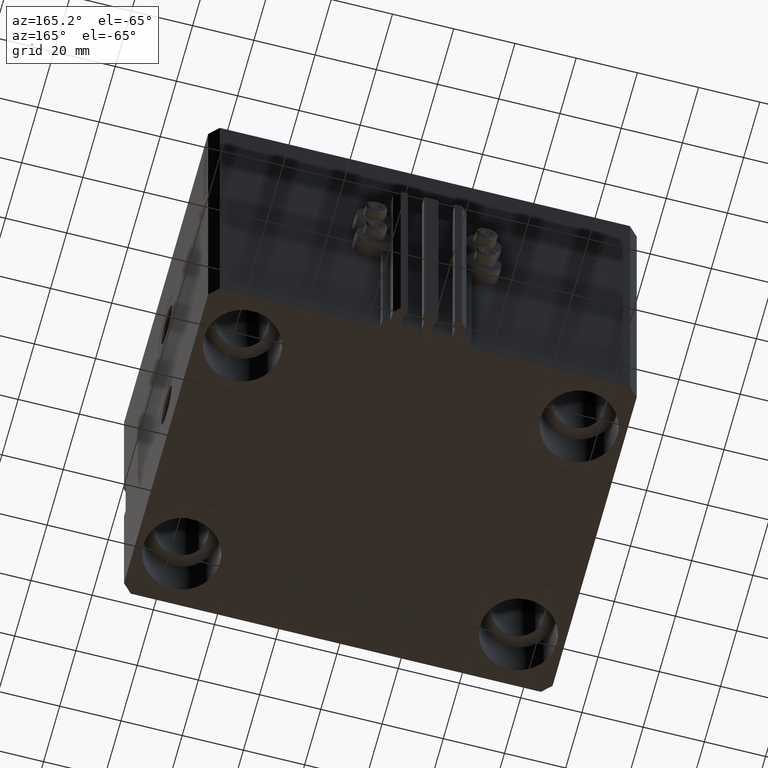
[diagram: clean part render]
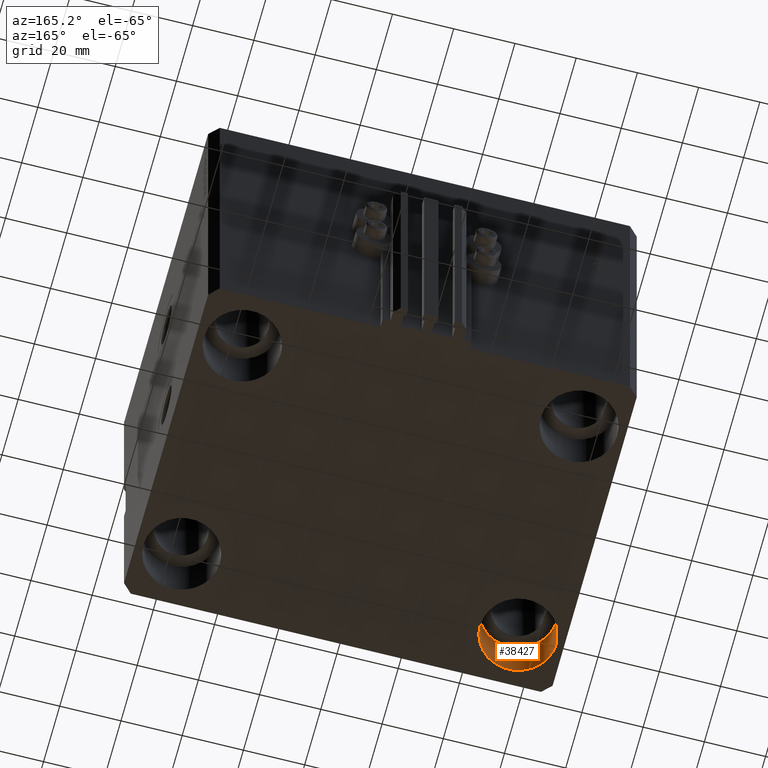
[diagram: same view with one face highlighted and labeled with its STEP entity id]
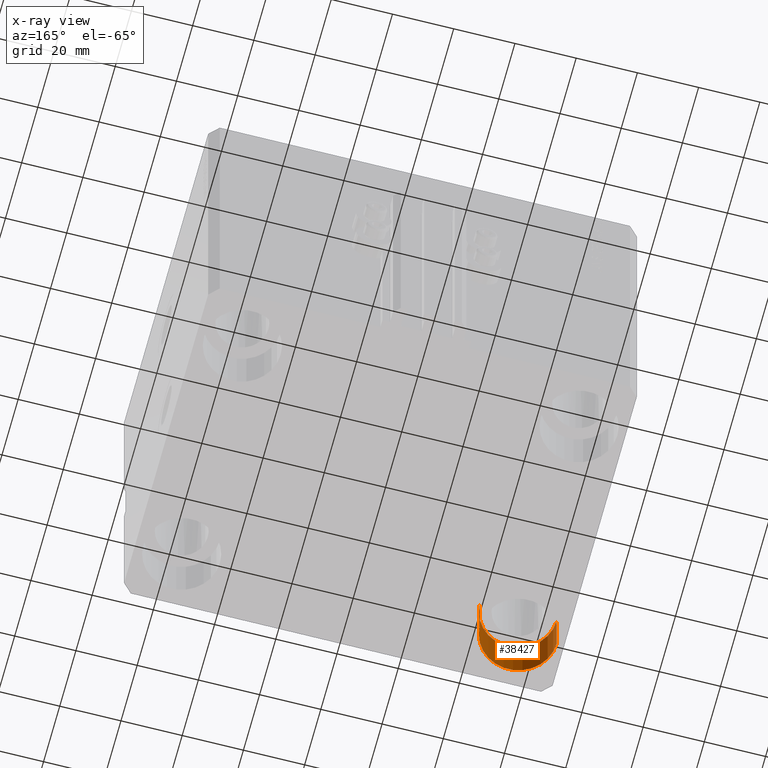
[diagram: x-ray of the same camera — body ghosted, the highlighted face saturated]
A machine part, auxiliary view. The second image highlights one B-rep face of the part: STEP entity #38427.
The next image is the same camera in x-ray: the body ghosted, the highlighted face saturated — about 0% of this face is hidden behind the body in this view.
In plain terms, the highlighted cylindrical surface (partial cylindrical patch) has radius 12.5 mm, axis along (-0, -0, -1).
Its self-contained STEP definition (entity closure, byte-faithful):
#1346 = ORIENTED_EDGE ( 'NONE', *, *, #11579, .F. ) ;
#4034 = EDGE_LOOP ( 'NONE', ( #19991, #28370, #22940, #1346 ) ) ;
#4711 = DIRECTION ( 'NONE',  ( -0.000000000000000000, -0.000000000000000000, 1.000000000000000000 ) ) ;
#5002 = VERTEX_POINT ( 'NONE', #24395 ) ;
#6078 = DIRECTION ( 'NONE',  ( -0.000000000000000000, -0.000000000000000000, -1.000000000000000000 ) ) ;
#6428 = AXIS2_PLACEMENT_3D ( 'NONE', #42391, #4711, #37916 ) ;
#6912 = CARTESIAN_POINT ( 'NONE',  ( -55.00000000000000711, -37.50000000000000711, -103.0000000000000000 ) ) ;
#7637 = DIRECTION ( 'NONE',  ( -1.000000000000000000, 0.000000000000000000, 0.000000000000000000 ) ) ;
#9815 = CARTESIAN_POINT ( 'NONE',  ( -67.50000000000000000, -37.50000000000000711, -103.0000000000000000 ) ) ;
#11579 = EDGE_CURVE ( 'NONE', #5002, #48429, #41010, .T. ) ;
#13945 = CARTESIAN_POINT ( 'NONE',  ( -55.00000000000000711, -37.50000000000000711, -120.0000000000000000 ) ) ;
#18659 = FACE_OUTER_BOUND ( 'NONE', #4034, .T. ) ;
#18730 = CARTESIAN_POINT ( 'NONE',  ( -42.50000000000000711, -37.50000000000000711, -103.0000000000000000 ) ) ;
#19991 = ORIENTED_EDGE ( 'NONE', *, *, #40505, .T. ) ;
#19994 = CARTESIAN_POINT ( 'NONE',  ( -42.50000000000000711, -37.50000000000000711, -103.0000000000000000 ) ) ;
#20119 = CIRCLE ( 'NONE', #41620, 12.49999999999999645 ) ;
#21452 = CARTESIAN_POINT ( 'NONE',  ( -42.50000000000000711, -37.50000000000000711, -120.0000000000000000 ) ) ;
#22940 = ORIENTED_EDGE ( 'NONE', *, *, #30728, .F. ) ;
#24001 = CARTESIAN_POINT ( 'NONE',  ( -67.50000000000000000, -37.50000000000000711, -120.0000000000000000 ) ) ;
#24395 = CARTESIAN_POINT ( 'NONE',  ( -67.50000000000000000, -37.50000000000000711, -103.0000000000000000 ) ) ;
#27953 = CIRCLE ( 'NONE', #6428, 12.49999999999999645 ) ;
#28370 = ORIENTED_EDGE ( 'NONE', *, *, #35540, .T. ) ;
#29196 = DIRECTION ( 'NONE',  ( -0.000000000000000000, -0.000000000000000000, 1.000000000000000000 ) ) ;
#30121 = CYLINDRICAL_SURFACE ( 'NONE', #31863, 12.49999999999999645 ) ;
#30728 = EDGE_CURVE ( 'NONE', #48429, #44243, #20119, .T. ) ;
#31863 = AXIS2_PLACEMENT_3D ( 'NONE', #6912, #33625, #7637 ) ;
#33625 = DIRECTION ( 'NONE',  ( -0.000000000000000000, -0.000000000000000000, -1.000000000000000000 ) ) ;
#33699 = LINE ( 'NONE', #18730, #41296 ) ;
#35540 = EDGE_CURVE ( 'NONE', #43801, #44243, #33699, .T. ) ;
#37916 = DIRECTION ( 'NONE',  ( 1.000000000000000000, 0.000000000000000000, 0.000000000000000000 ) ) ;
#38427 = ADVANCED_FACE ( 'NONE', ( #18659 ), #30121, .F. ) ;
#40505 = EDGE_CURVE ( 'NONE', #5002, #43801, #27953, .T. ) ;
#41010 = LINE ( 'NONE', #9815, #48209 ) ;
#41296 = VECTOR ( 'NONE', #45653, 1000.000000000000000 ) ;
#41620 = AXIS2_PLACEMENT_3D ( 'NONE', #13945, #29196, #48375 ) ;
#42391 = CARTESIAN_POINT ( 'NONE',  ( -55.00000000000000711, -37.50000000000000711, -103.0000000000000000 ) ) ;
#43801 = VERTEX_POINT ( 'NONE', #19994 ) ;
#44243 = VERTEX_POINT ( 'NONE', #21452 ) ;
#45653 = DIRECTION ( 'NONE',  ( -0.000000000000000000, -0.000000000000000000, -1.000000000000000000 ) ) ;
#48209 = VECTOR ( 'NONE', #6078, 1000.000000000000000 ) ;
#48375 = DIRECTION ( 'NONE',  ( 1.000000000000000000, 0.000000000000000000, 0.000000000000000000 ) ) ;
#48429 = VERTEX_POINT ( 'NONE', #24001 ) ;